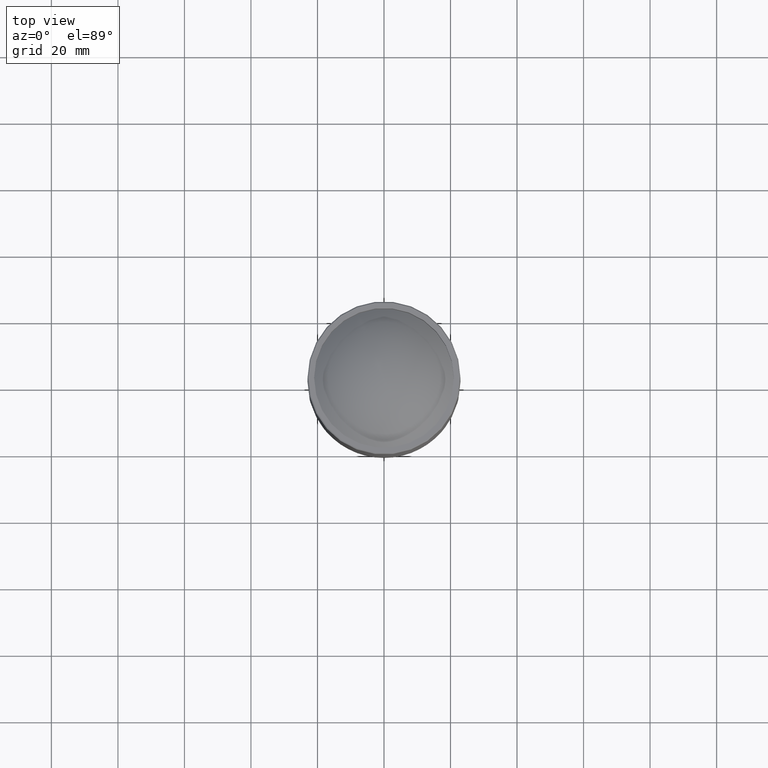
[diagram: clean part render]
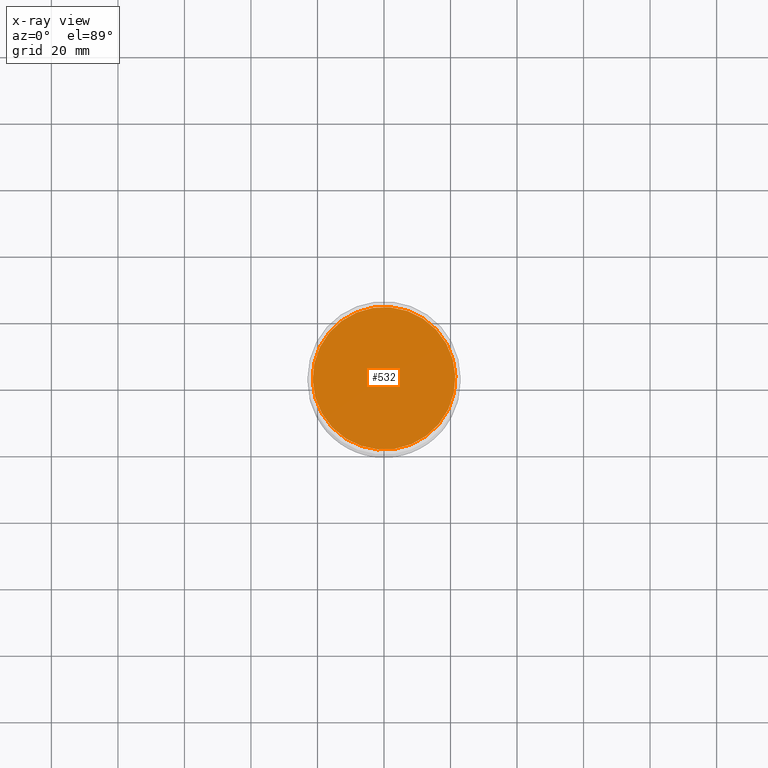
[diagram: x-ray — body ghosted, one internal face saturated and labeled with its STEP entity id]
A machine part, top view, then the same camera in x-ray: the body is ghosted and one INTERNAL B-rep face — a face not visible from any outside direction — is saturated and labeled: STEP entity #532.
In plain terms, the highlighted planar face has unit normal (-0, 0, 1).
Its self-contained STEP definition (entity closure, byte-faithful):
#141 = DIRECTION ( 'NONE',  ( -1.848892746611746419E-32, 1.318609258053556101E-16, 1.000000000000000000 ) ) ;
#147 = EDGE_LOOP ( 'NONE', ( #755 ) ) ;
#312 = AXIS2_PLACEMENT_3D ( 'NONE', #334, #482, #776 ) ;
#329 = DIRECTION ( 'NONE',  ( 0.3830490080632378835, -0.9237280213470681067, 1.218036320871736945E-16 ) ) ;
#334 = CARTESIAN_POINT ( 'NONE',  ( 0.000000000000000000, 2.081668171172168513E-14, -541.0000000000001137 ) ) ;
#344 = AXIS2_PLACEMENT_3D ( 'NONE', #715, #141, #329 ) ;
#379 = CARTESIAN_POINT ( 'NONE',  ( 8.217209483082314136, -19.81591518845250377, -541.0000000000001137 ) ) ;
#458 = VERTEX_POINT ( 'NONE', #379 ) ;
#460 = FACE_OUTER_BOUND ( 'NONE', #147, .T. ) ;
#482 = DIRECTION ( 'NONE',  ( -1.232595164407830946E-32, -1.318609258053555361E-16, -1.000000000000000000 ) ) ;
#532 = ADVANCED_FACE ( 'NONE', ( #460 ), #710, .F. ) ;
#662 = EDGE_CURVE ( 'NONE', #458, #458, #817, .T. ) ;
#710 = PLANE ( 'NONE',  #344 ) ;
#715 = CARTESIAN_POINT ( 'NONE',  ( -7.311375404722625149, -63.84507486142585009, -541.0000000000001137 ) ) ;
#755 = ORIENTED_EDGE ( 'NONE', *, *, #662, .T. ) ;
#776 = DIRECTION ( 'NONE',  ( 0.3830490080632379390, -0.9237280213470682178, 0.000000000000000000 ) ) ;
#817 = CIRCLE ( 'NONE', #312, 21.45211006975307555 ) ;